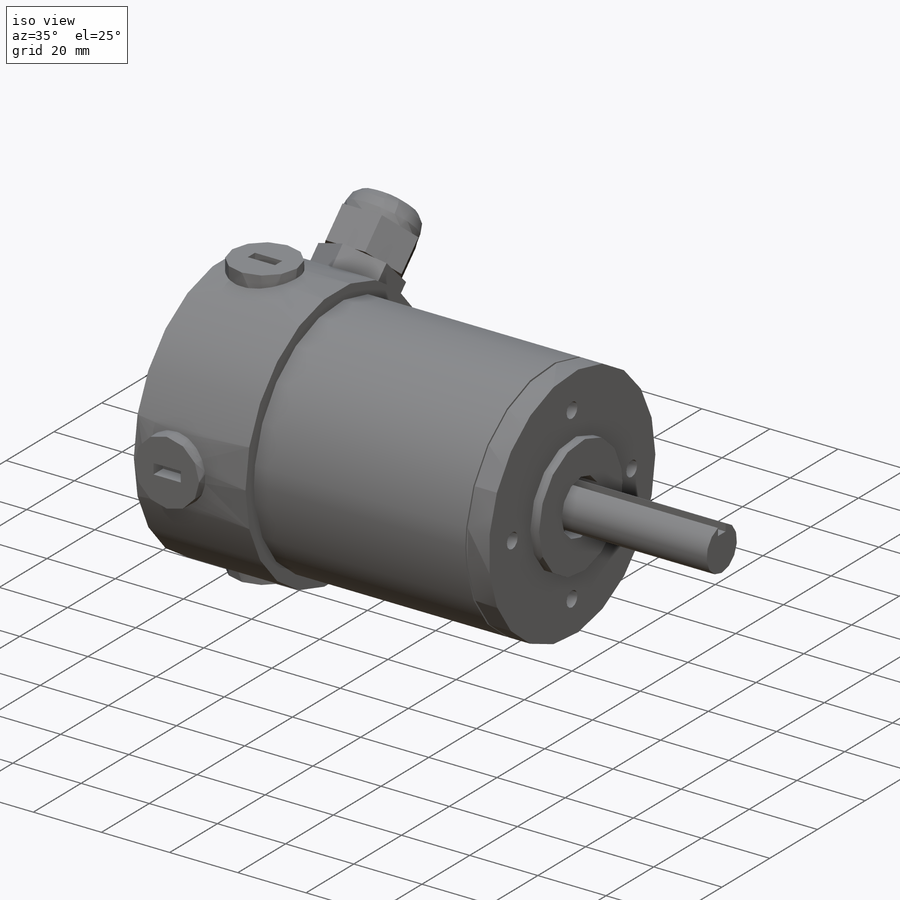
[diagram: iso view]
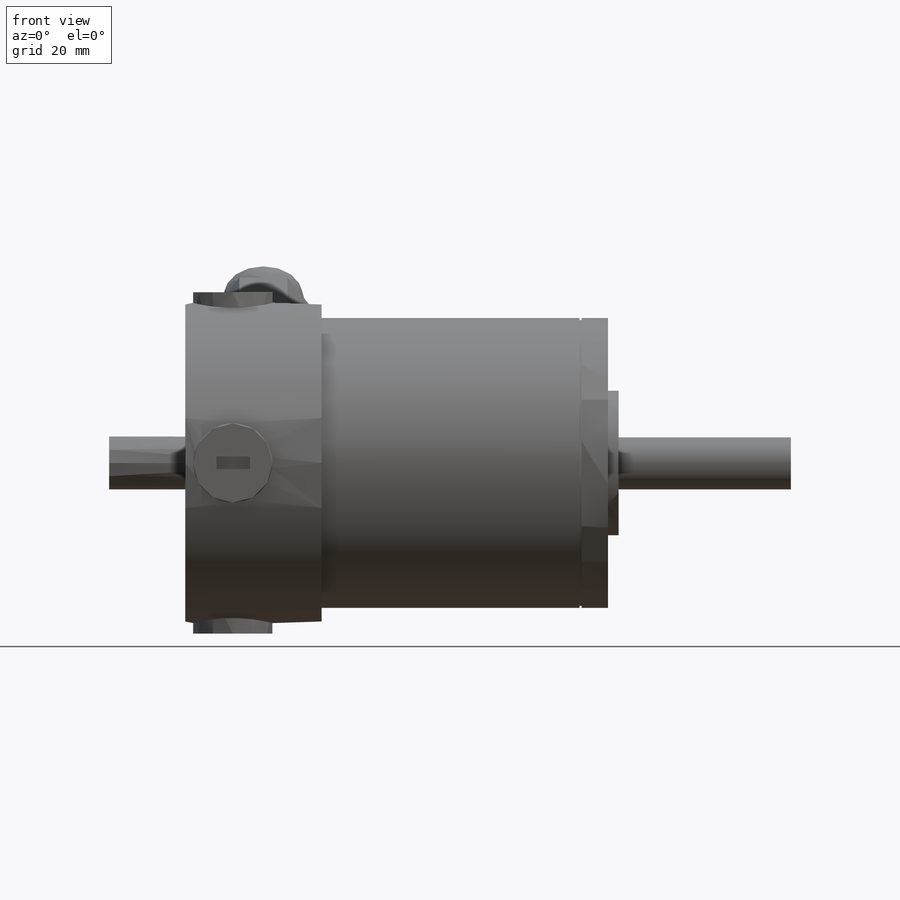
[diagram: front view]
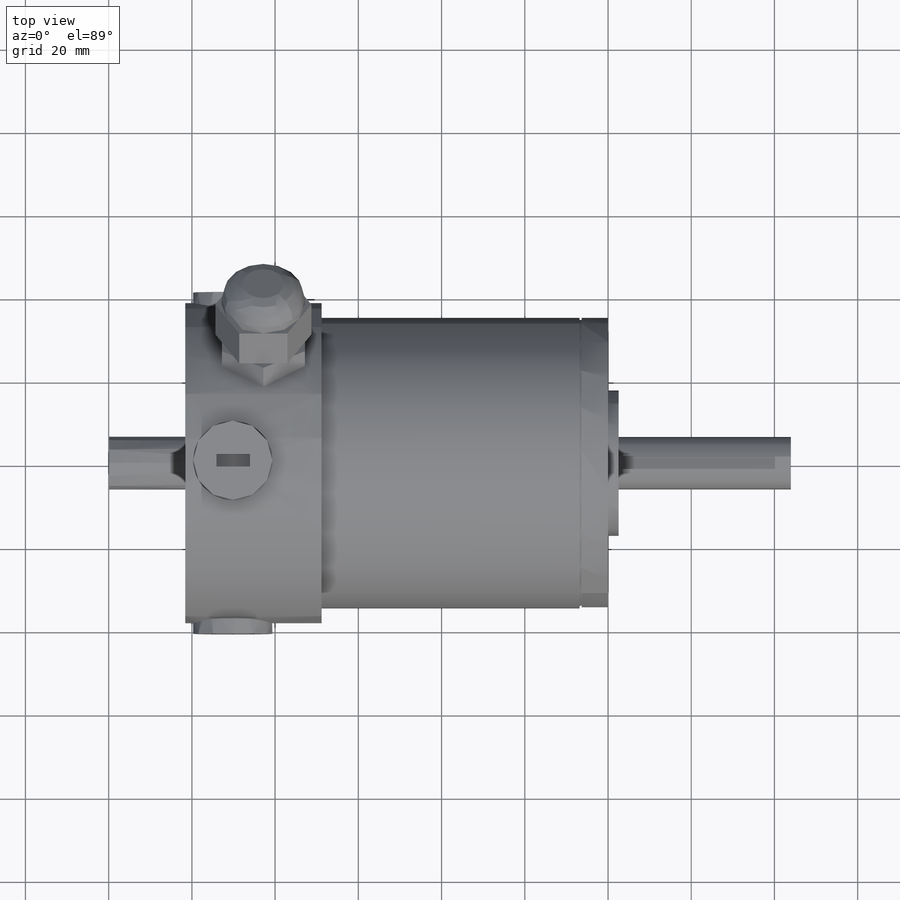
[diagram: top view]
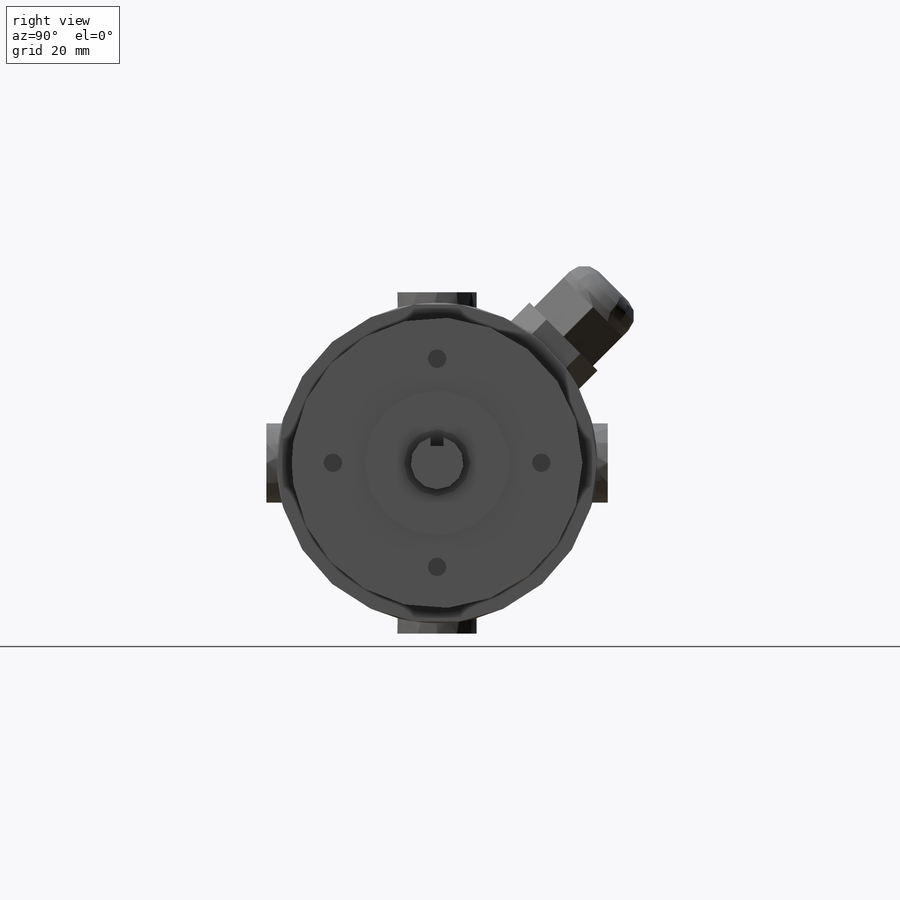
[diagram: right view]
SOLIDWORKS PART (.sldprt)
format: sldprt  version: not decoded by parser v0  size: 443,392 bytes
history: native  units: mm
features: sketch x19, extrude x12, cut_extrude x7, material x1, plane x1, fillet x1 (+13 scaffold rows collapsed)
feature tree (54):
  scaffold x13  (default folders/planes/origin — collapsed)
  material  "Material <not specified>"
  sketch  "Sketch1"  dims[D1=69.85mm]
  extrude  "Base-Extrude"  Depth=6.35mm
  sketch  "Sketch2"  dims[D1=68.85mm]
  extrude  "Boss-Extrude3"  Depth=0.5mm
  sketch  "Sketch4"  dims[D1=69.85mm]
  extrude  "Boss-Extrude4"  Depth=61.984mm
  sketch  "Sketch5"  dims[D1=34.925mm]
  extrude  "Boss-Extrude5"  Depth=2.54mm
  sketch  "Sketch6"  dims[D1=16.0mm]
  cut_extrude  "Cut-Extrude1"  Depth=5.08mm
  sketch  "Sketch7"  dims[c1.D4=6.35mm c1.D1=1.5875mm c1.D2=1.588mm c1.D3=4.0mm c2.D4=3.0mm]
  extrude  "Boss-Extrude6"  Depth=46.482mm
  sketch  "Sketch8"  dims[D1=76.962mm]
  extrude  "Boss-Extrude7"  Depth=32.766mm
  sketch  "Sketch9"  dims[D1=16.0mm]
  cut_extrude  "Cut-Extrude2"  Depth=2.54mm
  sketch  "Sketch10"  dims[D1=12.7mm]
  extrude  "Boss-Extrude8"  Depth=20.828mm
  sketch  "Sketch11"  dims[D3=19.05mm D1=6.35mm D2=11.43mm]
  extrude  "Boss-Extrude9"  Depth=82.042mm
  sketch  "Sketch12"  dims[D2=19.05mm D1=9.525mm]
  extrude  "Boss-Extrude10"  Depth=82.042mm
  sketch  "Sketch14"  dims[c1.D1=1.5mm c1.D2=1.5mm c1.D3=4.0mm c1.D4=4.0mm c2.D1=8.0mm c2.D2=3.0mm c2.D3=4.85mm c2.D4=76.962mm]
  cut_extrude  "Cut-Extrude3"  Depth=4mm
  sketch  "Sketch15"
  cut_extrude  "Cut-Extrude4"  Depth=4mm
  sketch  "Sketch16"  dims[D1=3.0mm D2=8.0mm D3=8.0mm D4=4.85mm]
  cut_extrude  "Cut-Extrude5"  Depth=4mm
  sketch  "Sketch17"
  cut_extrude  "Cut-Extrude6"  Depth=4mm
  sketch  "Sketch18"  dims[c1.D1=50.038mm c1.D6=4.5mm c1.D7=4.5mm c1.D8=4.5mm c1.D9=4.5mm c2.D1=25.019mm c2.D2=25.019mm c2.D3=25.019mm c2.D4=25.019mm c2.D5=~35.382209mm c2.D6=~35.382209mm]
  cut_extrude  "Cut-Extrude7"  Depth=12.7mm
  plane  "Plane3"
  sketch  "Sketch21"  dims[D1=6.35mm D2=20.0mm D3=4.0mm]
  extrude  "Boss-Extrude12"  Depth=43mm
  sketch  "Sketch22"  dims[D1=20.0mm]
  extrude  "Boss-Extrude13"  Depth=10mm
  sketch  "Sketch23"  dims[D2=20.0mm D1=10.0mm]
  extrude  "Boss-Extrude14"  Depth=7mm
  fillet  "Fillet1"  Radius=5mm
decode coverage: 37 of 39 modeling features carry decoded parameters
note: ~ marks probable driven/reference dimensions
note: suppression state not decoded; provenance and decode notes live in map.json
